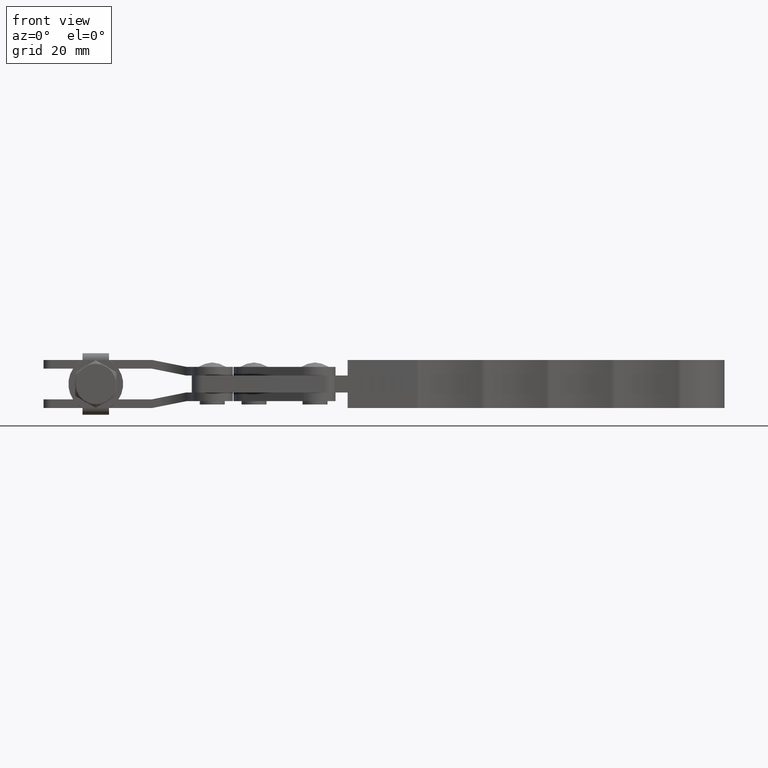
[diagram: clean part render]
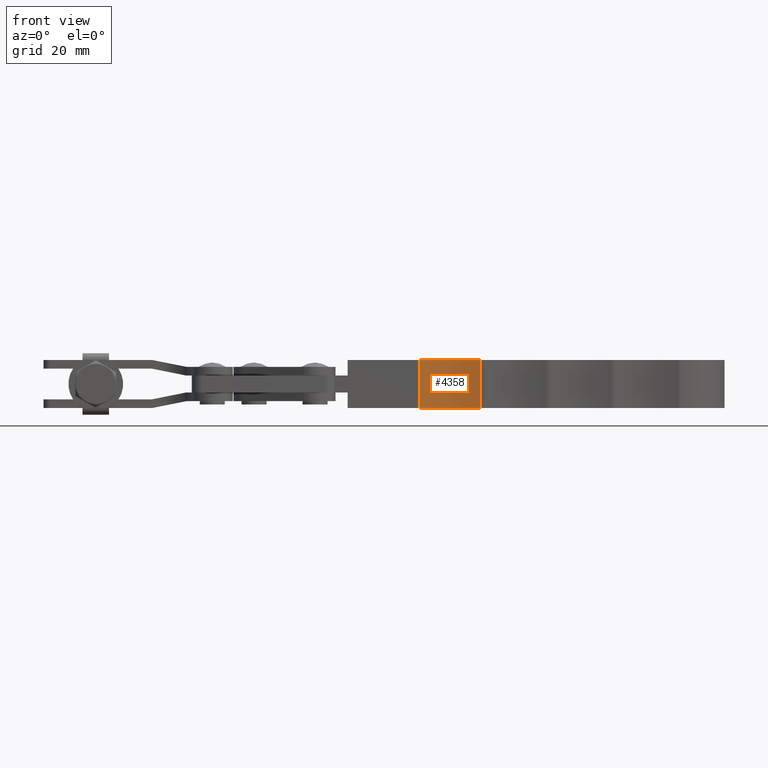
[diagram: same view with one face highlighted and labeled with its STEP entity id]
A machine part, front view. The second image highlights one B-rep face of the part: STEP entity #4358.
In plain terms, the highlighted cylindrical surface (partial cylindrical patch) has radius 32 mm, axis along (0, 0, -1).
Its self-contained STEP definition (entity closure, byte-faithful):
#145 = ORIENTED_EDGE ( 'NONE', *, *, #3574, .T. ) ;
#372 = ORIENTED_EDGE ( 'NONE', *, *, #1501, .F. ) ;
#558 = ORIENTED_EDGE ( 'NONE', *, *, #1888, .F. ) ;
#755 = CARTESIAN_POINT ( 'NONE',  ( 33.76915759846050900, -19.39636785245572200, -7.000000000000000900 ) ) ;
#880 = ORIENTED_EDGE ( 'NONE', *, *, #2918, .T. ) ;
#1501 = EDGE_CURVE ( 'NONE', #2984, #2148, #2331, .T. ) ;
#1888 = EDGE_CURVE ( 'NONE', #2148, #8344, #7931, .T. ) ;
#2148 = VERTEX_POINT ( 'NONE', #5811 ) ;
#2331 = CIRCLE ( 'NONE', #7056, 31.99999999999991800 ) ;
#2390 = DIRECTION ( 'NONE',  ( 0.9999993301781756600, -0.001157429565958547600, 0.0000000000000000000 ) ) ;
#2414 = DIRECTION ( 'NONE',  ( -0.0000000000000000000, 0.0000000000000000000, -1.000000000000000000 ) ) ;
#2558 = FACE_OUTER_BOUND ( 'NONE', #4914, .T. ) ;
#2918 = EDGE_CURVE ( 'NONE', #6639, #8344, #8540, .T. ) ;
#2984 = VERTEX_POINT ( 'NONE', #3469 ) ;
#3469 = CARTESIAN_POINT ( 'NONE',  ( 24.58749263178653500, 11.25811026151241600, 6.999999999999999100 ) ) ;
#3574 = EDGE_CURVE ( 'NONE', #2984, #6639, #5438, .T. ) ;
#3888 = CARTESIAN_POINT ( 'NONE',  ( 33.76915759846050900, -19.39636785245572200, 6.999999999999999100 ) ) ;
#4358 = ADVANCED_FACE ( 'NONE', ( #2558 ), #4539, .F. ) ;
#4539 = CYLINDRICAL_SURFACE ( 'NONE', #8553, 31.99999999999992500 ) ;
#4655 = VECTOR ( 'NONE', #5995, 1000.000000000000000 ) ;
#4682 = DIRECTION ( 'NONE',  ( -0.0000000000000000000, 0.0000000000000000000, -1.000000000000000000 ) ) ;
#4914 = EDGE_LOOP ( 'NONE', ( #880, #558, #372, #145 ) ) ;
#5029 = DIRECTION ( 'NONE',  ( 0.9999993301781756600, -0.001157429565958547600, 0.0000000000000000000 ) ) ;
#5315 = CARTESIAN_POINT ( 'NONE',  ( 24.58749263178653500, 11.25811026151241600, -7.000000000000000900 ) ) ;
#5438 = LINE ( 'NONE', #5892, #7678 ) ;
#5811 = CARTESIAN_POINT ( 'NONE',  ( 42.37194354669226500, 11.42557358426921600, 6.999999999999999100 ) ) ;
#5892 = CARTESIAN_POINT ( 'NONE',  ( 24.58749263178653500, 11.25811026151241600, 6.999999999999999100 ) ) ;
#5995 = DIRECTION ( 'NONE',  ( -0.0000000000000000000, 0.0000000000000000000, -1.000000000000000000 ) ) ;
#6639 = VERTEX_POINT ( 'NONE', #5315 ) ;
#7040 = CARTESIAN_POINT ( 'NONE',  ( 33.76915759846050900, -19.39636785245572200, 6.999999999999999100 ) ) ;
#7056 = AXIS2_PLACEMENT_3D ( 'NONE', #3888, #8189, #5029 ) ;
#7589 = DIRECTION ( 'NONE',  ( -0.9999993301781756600, 0.001157429565958547100, 0.0000000000000000000 ) ) ;
#7678 = VECTOR ( 'NONE', #2414, 1000.000000000000000 ) ;
#7931 = LINE ( 'NONE', #8664, #4655 ) ;
#7976 = DIRECTION ( 'NONE',  ( -0.0000000000000000000, 0.0000000000000000000, -1.000000000000000000 ) ) ;
#8189 = DIRECTION ( 'NONE',  ( -0.0000000000000000000, 0.0000000000000000000, -1.000000000000000000 ) ) ;
#8193 = CARTESIAN_POINT ( 'NONE',  ( 42.37194354669226500, 11.42557358426921600, -7.000000000000000900 ) ) ;
#8344 = VERTEX_POINT ( 'NONE', #8193 ) ;
#8418 = AXIS2_PLACEMENT_3D ( 'NONE', #755, #7976, #2390 ) ;
#8540 = CIRCLE ( 'NONE', #8418, 31.99999999999991800 ) ;
#8553 = AXIS2_PLACEMENT_3D ( 'NONE', #7040, #4682, #7589 ) ;
#8664 = CARTESIAN_POINT ( 'NONE',  ( 42.37194354669226500, 11.42557358426921600, 6.999999999999999100 ) ) ;